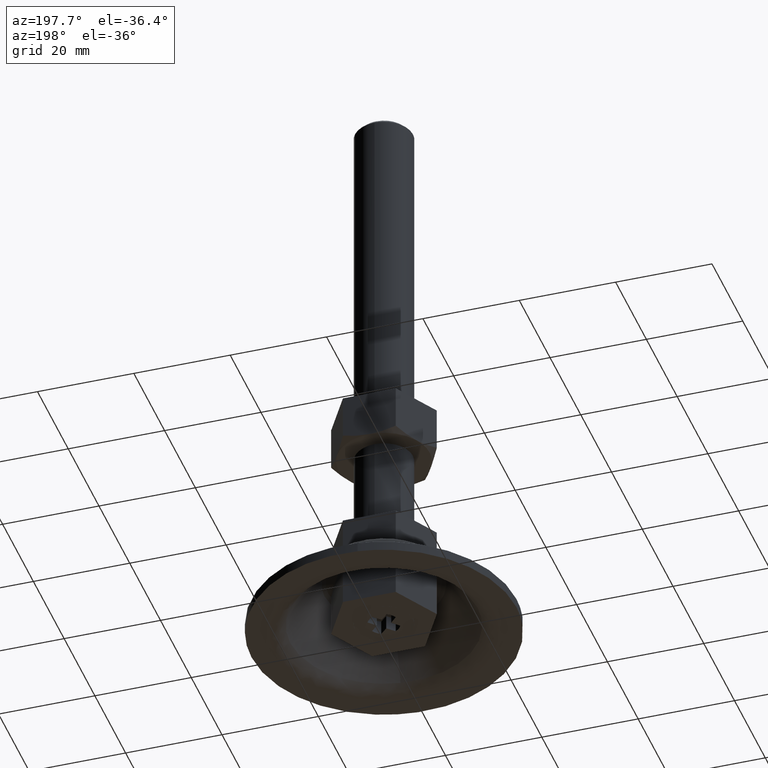
[diagram: clean part render]
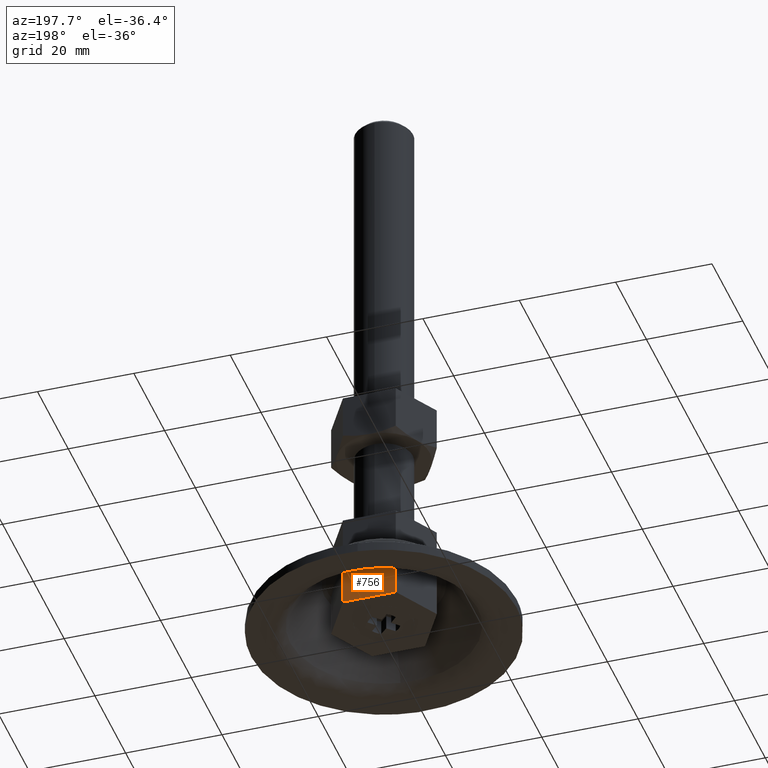
[diagram: same view with one face highlighted and labeled with its STEP entity id]
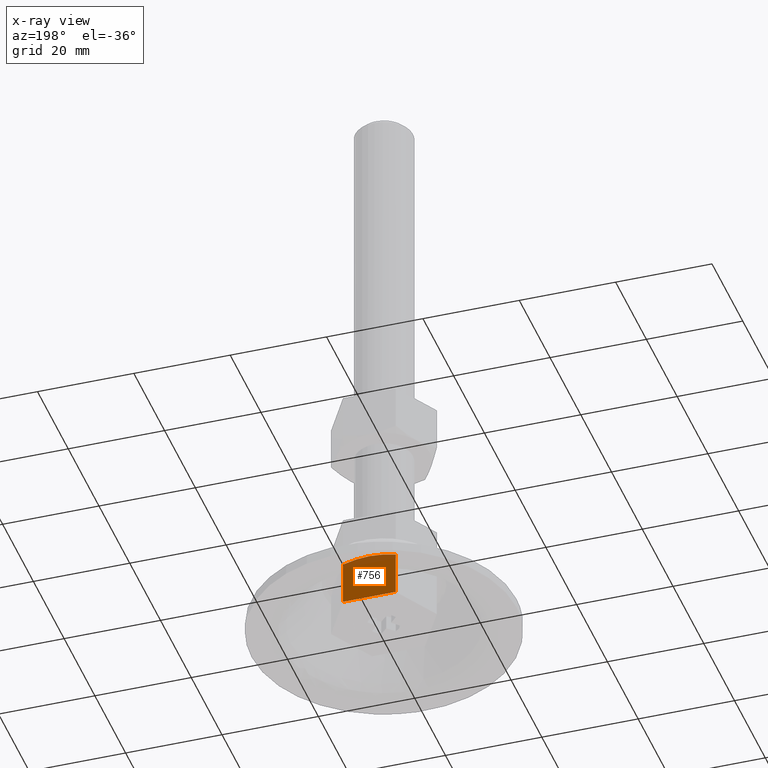
[diagram: x-ray of the same camera — body ghosted, the highlighted face saturated]
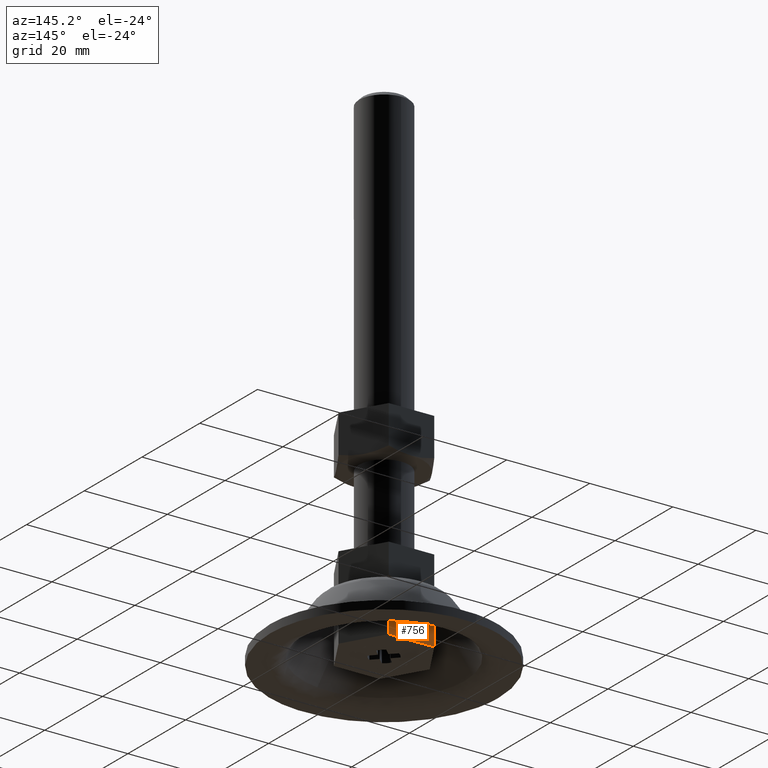
[diagram: same view with one face highlighted and labeled with its STEP entity id]
A machine part, auxiliary view. The second image highlights one B-rep face of the part: STEP entity #756.
The next image is the same camera in x-ray: the body ghosted, the highlighted face saturated — about 15% of this face is hidden behind the body in this view.
A second angle (auxiliary view) of the same face is appended — the face is thin or edge-on in the first view.
In plain terms, the highlighted face is a freeform B-spline surface patch.
Its self-contained STEP definition (entity closure, byte-faithful):
#242=CARTESIAN_POINT('',(0.0,9.500000164047821,42.0));
#243=VERTEX_POINT('',#242);
#257=CARTESIAN_POINT('',(-5.484826835952180,9.500000284139130,42.848505615152803));
#258=VERTEX_POINT('',#257);
#272=CARTESIAN_POINT('',(0.0,9.500000164047821,42.0));
#273=CARTESIAN_POINT('',(-0.463009690447603,9.500000000000000,42.000000134859093));
#274=CARTESIAN_POINT('',(-0.924539140124810,9.499999999999998,42.019639159715183));
#275=CARTESIAN_POINT('',(-1.845330034007174,9.500000000000000,42.096314449744860));
#276=CARTESIAN_POINT('',(-2.304590218097860,9.500000000000000,42.153367433232880));
#277=CARTESIAN_POINT('',(-3.220580687174989,9.500000000000000,42.301038326015501));
#278=CARTESIAN_POINT('',(-3.677511841174647,9.499999999999996,42.391670044219907));
#279=CARTESIAN_POINT('',(-4.588400013084592,9.500000000000002,42.601468344173448));
#280=CARTESIAN_POINT('',(-5.038663035597532,9.500000000000002,42.719709089795003));
#281=CARTESIAN_POINT('',(-5.484826835952180,9.500000284139130,42.848505615152803));
#282=B_SPLINE_CURVE_WITH_KNOTS('',3,(#272,#273,#274,#275,#276,#277,#278,#279,#280,#281),.UNSPECIFIED.,.F.,.U.,(4,2,2,2,4),(0.0,0.124851489756229,0.249851489756229,0.374851489756229,0.499851489756230),.UNSPECIFIED.);
#283=EDGE_CURVE('',#243,#258,#282,.T.);
#317=CARTESIAN_POINT('',(5.484827328095640,9.500000000000000,42.848505615152803));
#318=VERTEX_POINT('',#317);
#319=CARTESIAN_POINT('',(5.484827328095641,9.500000000000000,42.848505615152803));
#320=CARTESIAN_POINT('',(4.598224666068346,9.500000000000000,42.592565480381559));
#321=CARTESIAN_POINT('',(3.699995700698254,9.500000000000002,42.379405982623489));
#322=CARTESIAN_POINT('',(2.555311514520187,9.500000000000000,42.193533340897353));
#323=CARTESIAN_POINT('',(2.210257309745524,9.500000000000002,42.143839090501253));
#324=CARTESIAN_POINT('',(1.862517347535006,9.500000000000002,42.104027466644403));
#325=CARTESIAN_POINT('',(1.630071515842049,9.500000000000002,42.079764782565952));
#326=CARTESIAN_POINT('',(1.513406574582252,9.499999999999998,42.068762331123267));
#327=CARTESIAN_POINT('',(0.930264607516169,9.500000000000000,42.019787457721030));
#328=CARTESIAN_POINT('',(0.465216213658839,9.500000000000004,42.000046536248597));
#329=CARTESIAN_POINT('',(0.001101497673318,9.500000000000002,41.999999932938039));
#330=CARTESIAN_POINT('',(0.000550747789443,9.500000000000002,41.999999905423721));
#331=CARTESIAN_POINT('',(0.0,9.500000164047821,42.0));
#332=B_SPLINE_CURVE_WITH_KNOTS('',3,(#319,#320,#321,#322,#323,#324,#325,#326,#327,#328,#329,#330,#331),.UNSPECIFIED.,.F.,.U.,(4,2,1,2,2,2,4),(0.499851489756230,0.749851489756228,0.812351489756228,0.843601489756228,0.874851489756228,0.999851489756228,1.0),.UNSPECIFIED.);
#333=EDGE_CURVE('',#318,#243,#332,.T.);
#619=CARTESIAN_POINT('',(5.484827999999999,9.500000000000000,52.0));
#620=VERTEX_POINT('',#619);
#626=CARTESIAN_POINT('',(-5.484827000000000,9.500000000000000,52.0));
#627=VERTEX_POINT('',#626);
#628=CARTESIAN_POINT('',(5.484827999999999,9.500000000000000,52.0));
#629=CARTESIAN_POINT('',(-5.484827000000000,9.500000000000000,52.0));
#630=QUASI_UNIFORM_CURVE('',1,(#628,#629),.UNSPECIFIED.,.F.,.U.);
#631=EDGE_CURVE('',#620,#627,#630,.T.);
#728=CARTESIAN_POINT('',(-5.484827000000000,9.500000000000000,52.0));
#729=CARTESIAN_POINT('',(-5.484826835952180,9.500000284139130,42.848505615152803));
#730=QUASI_UNIFORM_CURVE('',1,(#728,#729),.UNSPECIFIED.,.F.,.U.);
#731=EDGE_CURVE('',#627,#258,#730,.T.);
#740=CARTESIAN_POINT('',(-6.032761348963953,9.500000000000000,52.499499980618062));
#741=CARTESIAN_POINT('',(-6.032761348963953,9.500000000000000,41.500499751161037));
#742=CARTESIAN_POINT('',(6.032762545116670,9.500000000000000,52.499499980618062));
#743=CARTESIAN_POINT('',(6.032762545116670,9.500000000000000,41.500499751161037));
#744=B_SPLINE_SURFACE_WITH_KNOTS('',1,1,((#740,#742),(#741,#743)),.UNSPECIFIED.,.F.,.F.,.U.,(2,2),(2,2),(0.0,10.999000229457030),(0.0,12.065523894080620),.UNSPECIFIED.);
#745=CARTESIAN_POINT('',(5.484827999999999,9.500000000000000,52.0));
#746=CARTESIAN_POINT('',(5.484827328095640,9.500000000000000,42.848505615152803));
#747=QUASI_UNIFORM_CURVE('',1,(#745,#746),.UNSPECIFIED.,.F.,.U.);
#748=EDGE_CURVE('',#620,#318,#747,.T.);
#749=ORIENTED_EDGE('',*,*,#748,.T.);
#750=ORIENTED_EDGE('',*,*,#333,.T.);
#751=ORIENTED_EDGE('',*,*,#283,.T.);
#752=ORIENTED_EDGE('',*,*,#731,.F.);
#753=ORIENTED_EDGE('',*,*,#631,.F.);
#754=EDGE_LOOP('',(#749,#750,#751,#752,#753));
#755=FACE_OUTER_BOUND('',#754,.T.);
#756=ADVANCED_FACE('',(#755),#744,.F.);